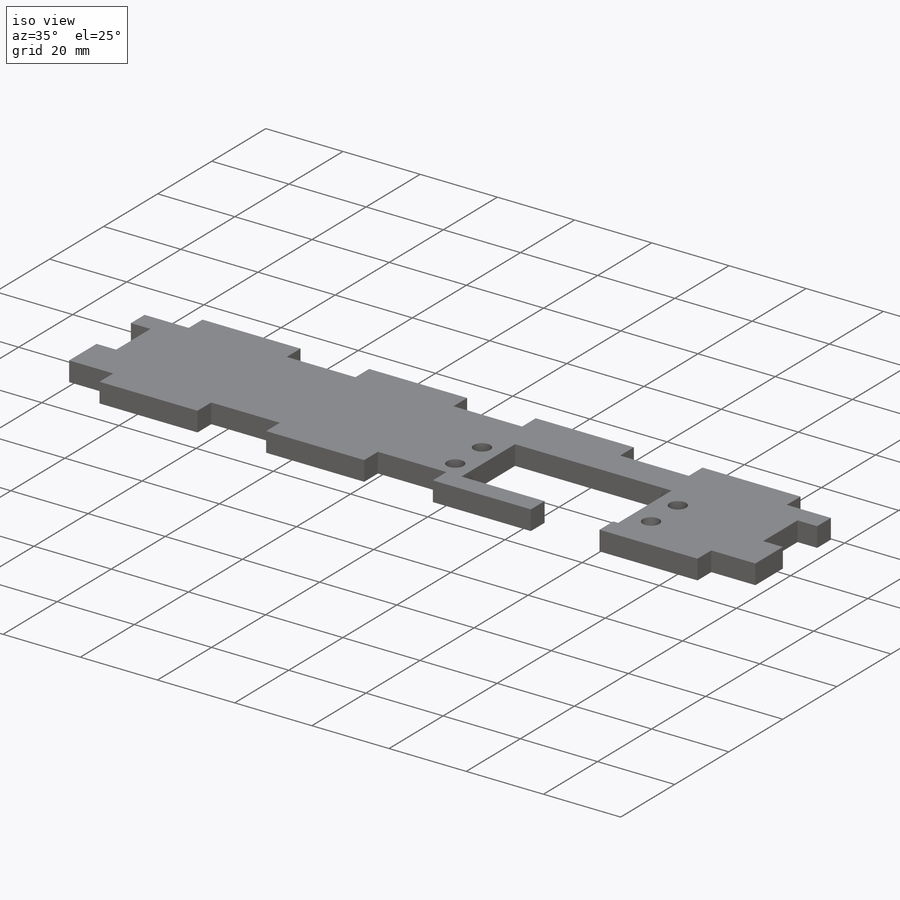
[diagram: iso view]
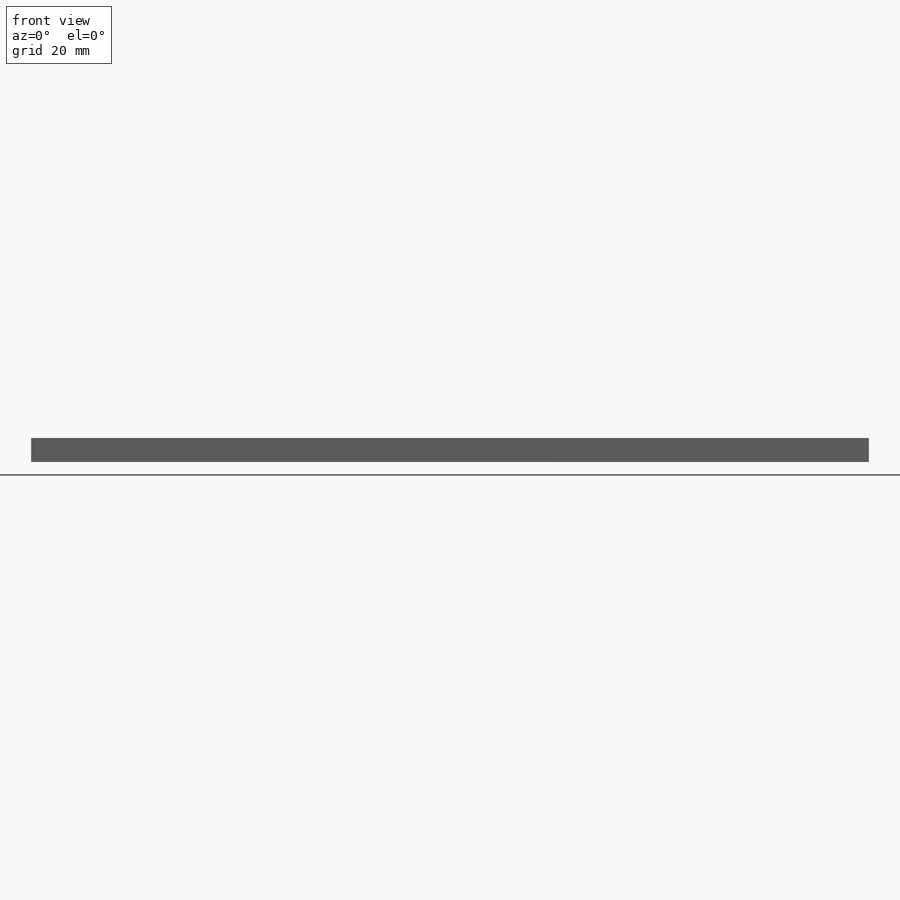
[diagram: front view]
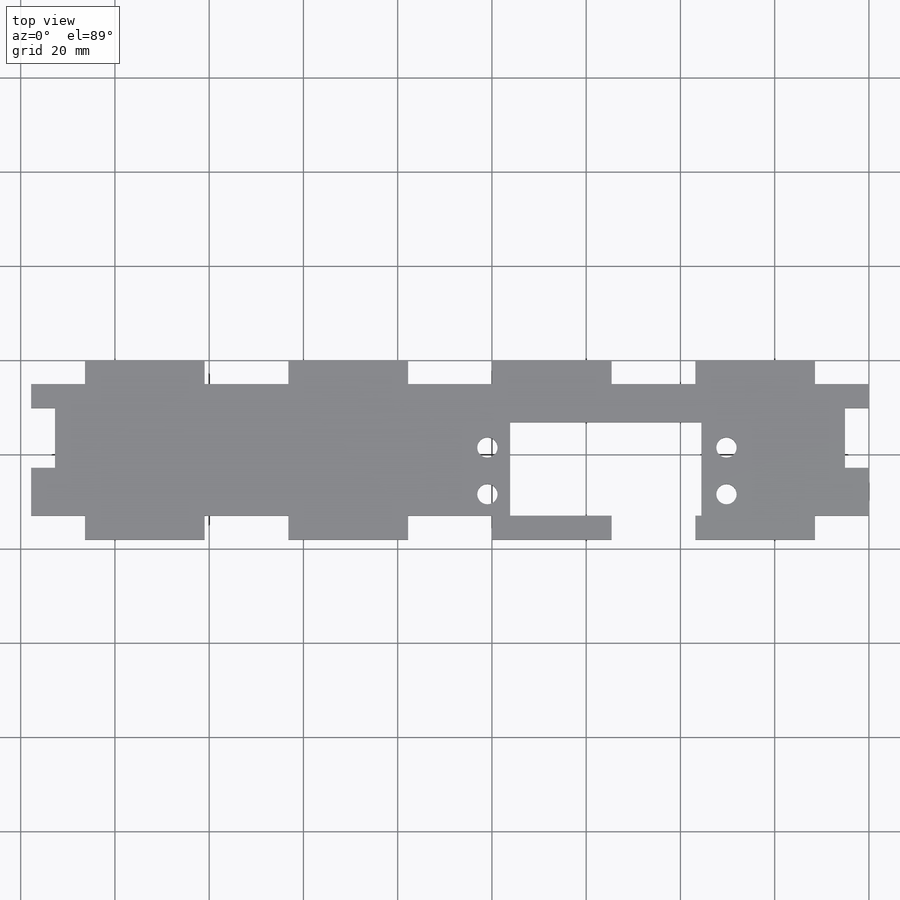
[diagram: top view]
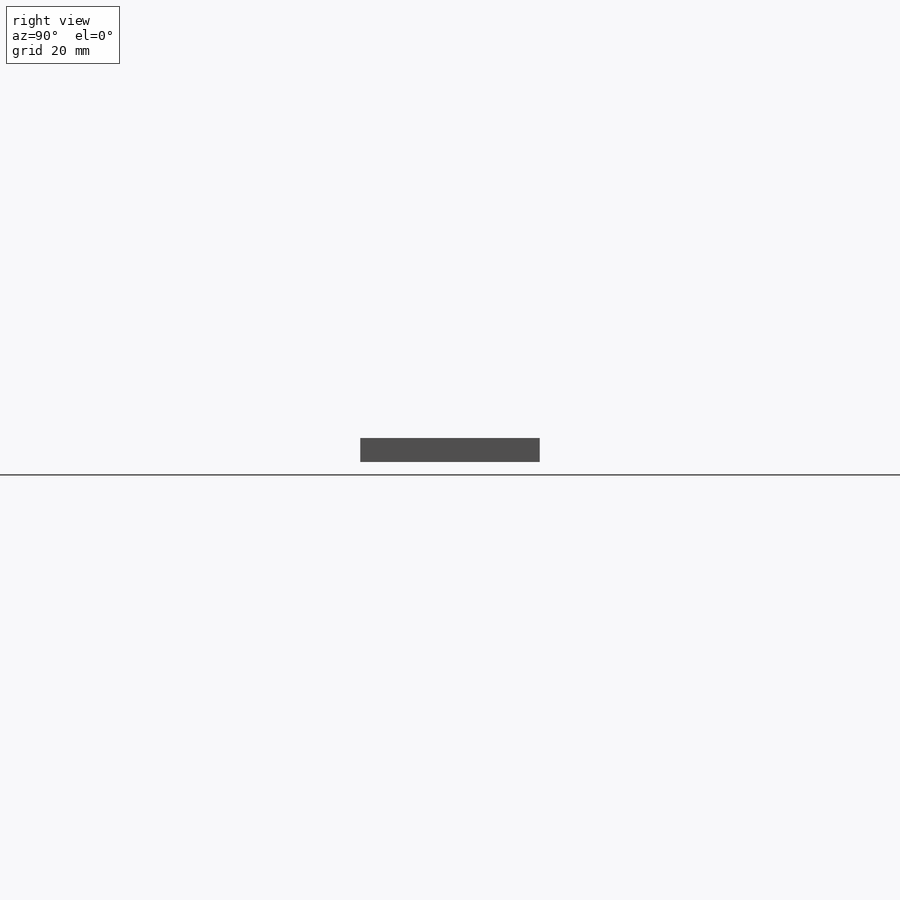
[diagram: right view]
SOLIDWORKS PART (.sldprt)
format: sldprt  version: not decoded by parser v0  size: 433,152 bytes
history: native  units: mm
features: sketch x10, cut_extrude x9, pattern_linear x2, material x1, extrude x1 (+13 scaffold rows collapsed)
feature tree (36):
  scaffold x13  (default folders/planes/origin — collapsed)
  material  "Material <not specified>"
  sketch  "Sketch1"  dims[D1=177.8mm D2=38.1mm]
  extrude  "Boss-Extrude1"  Depth=5.08mm
  sketch  "Sketch2"  dims[D1=5.08mm D2=11.43mm]
  cut_extrude  "Cut-Extrude1"  [1 undecoded]
  sketch  "Sketch3"  dims[D1=11.43mm D2=5.08mm]
  cut_extrude  "Cut-Extrude2"  [1 undecoded]
  sketch  "Sketch4"  dims[D1=5.08mm D2=17.78mm D3=25.4mm]
  cut_extrude  "Cut-Extrude3"  [1 undecoded]
  pattern_linear  "LPattern1"  Count1=3 Count2=1 Spacing1=43.18mm Spacing2=2.54mm
  sketch  "Sketch5"  dims[c1.D1=40.5765mm c1.D2=19.812mm c1.D3=10.16mm c1.D4=35.56mm c2.D3=5.08mm]
  cut_extrude  "Cut-Extrude4"  [1 undecoded]
  sketch  "Sketch6"  dims[D1=5.08mm D2=12.7mm D3=10.16mm D4=10.16mm]
  cut_extrude  "Cut-Extrude5"  [1 undecoded]
  sketch  "Sketch7"  dims[D1=5.08mm D2=0.0mm D3=5.08mm D4=0.0mm D5=0.0mm D6=5.08mm D7=0.0mm]
  cut_extrude  "Cut-Extrude6"  [1 undecoded]
  sketch  "Sketch8"  dims[D1=5.08mm D2=0.0mm D3=0.0mm]
  cut_extrude  "Cut-Extrude7"  [1 undecoded]
  pattern_linear  "LPattern2"  Count1=2 Count2=1 Spacing1=43.18mm Spacing2=50mm
  sketch  "Sketch9"  dims[D1=0.0mm D2=0.0mm D3=5.08mm]
  cut_extrude  "Cut-Extrude8"  [1 undecoded]
  sketch  "Sketch10"  dims[c1.D1=4.318mm c1.D5=4.318mm c1.D6=4.318mm c1.D2=9.906mm c1.D3=4.826mm c1.D4=5.334mm c2.D6=~2.881133mm c2.D7=9.906mm c2.D8=4.572mm c3.D6=5.334mm c3.D8=5.334mm]
  cut_extrude  "Cut-Extrude9"  [1 undecoded]
decode coverage: 13 of 22 modeling features carry decoded parameters
note: ~ marks probable driven/reference dimensions
note: 9 parameter values undecoded
summary: no parameter record found for 9 features
note: suppression state not decoded; provenance and decode notes live in map.json
